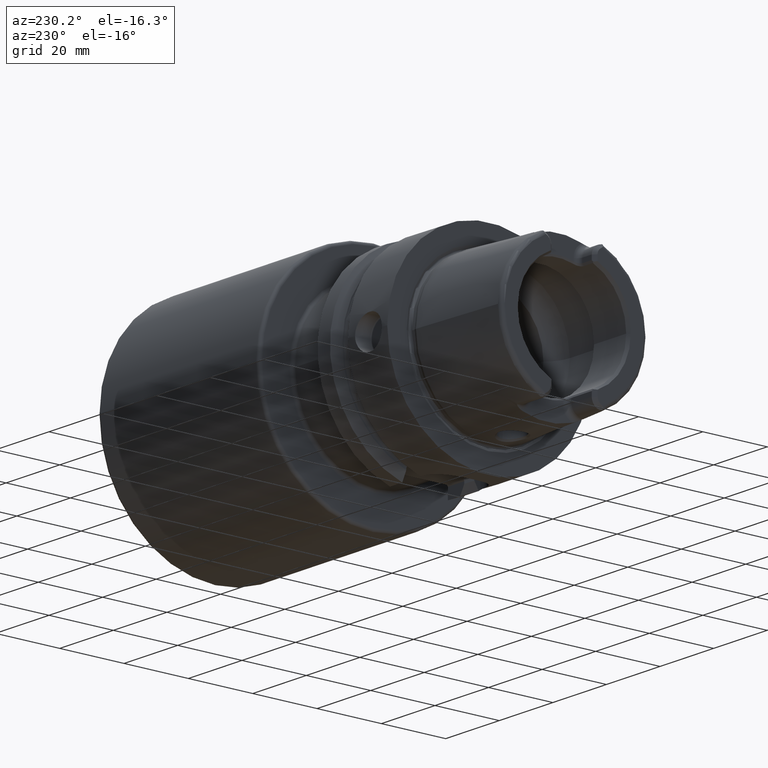
[diagram: clean part render]
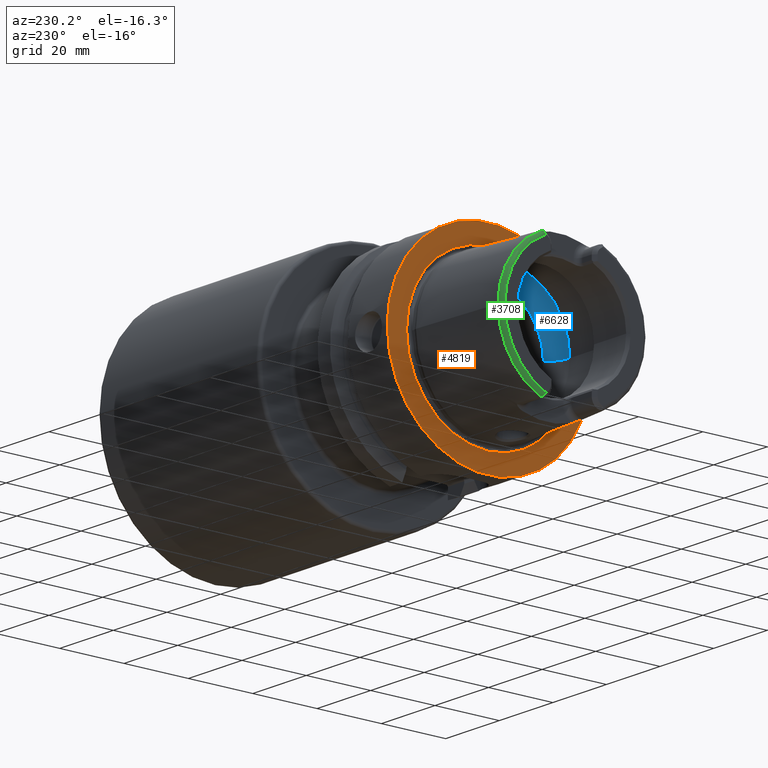
[diagram: same view with three faces highlighted in distinct colors, each labeled with its STEP entity id]
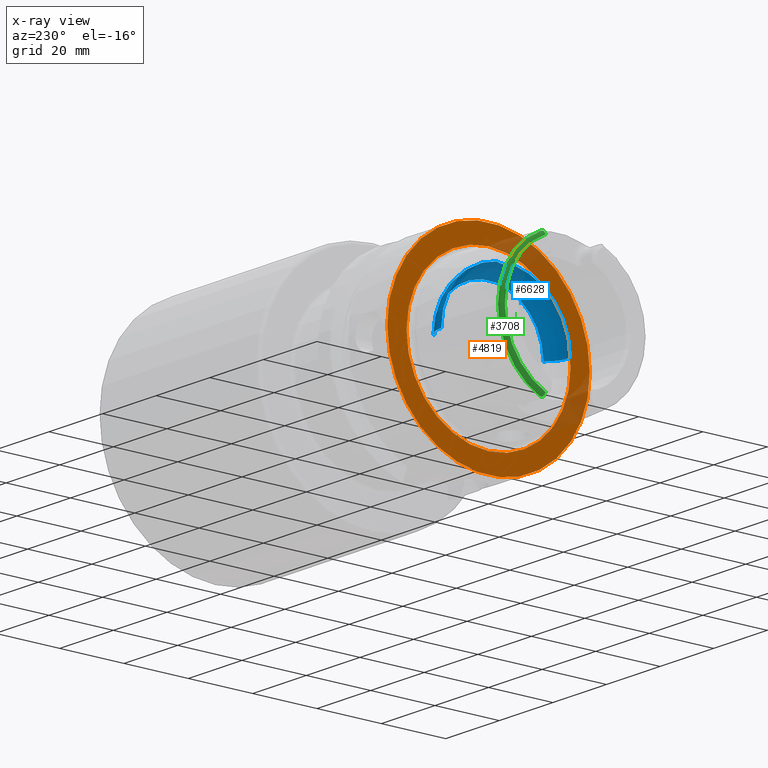
[diagram: x-ray of the same camera — body ghosted, the three highlighted faces saturated]
A machine part, auxiliary view with three faces highlighted in distinct colors.
The next image is the same camera in x-ray (body ghosted, the three faces saturated) — at least one of them is partly hidden behind the body in this view.
Their STEP definitions:

[orange] entity #4819 — the highlighted planar face has unit normal (1, 0, 0).
#1068=CARTESIAN_POINT('',(-1.421085471520E-14,0.E0,0.E0));
#1069=DIRECTION('',(1.E0,0.E0,0.E0));
#1070=DIRECTION('',(0.E0,1.E0,0.E0));
#1071=AXIS2_PLACEMENT_3D('',#1068,#1069,#1070);
#1073=CARTESIAN_POINT('',(-1.421085471520E-14,0.E0,0.E0));
#1074=DIRECTION('',(-1.E0,0.E0,0.E0));
#1075=DIRECTION('',(0.E0,1.E0,0.E0));
#1076=AXIS2_PLACEMENT_3D('',#1073,#1074,#1075);
#1078=CARTESIAN_POINT('',(0.E0,0.E0,0.E0));
#1079=DIRECTION('',(-1.E0,0.E0,0.E0));
#1080=DIRECTION('',(0.E0,-1.E0,0.E0));
#1081=AXIS2_PLACEMENT_3D('',#1078,#1079,#1080);
#1083=CARTESIAN_POINT('',(0.E0,0.E0,0.E0));
#1084=DIRECTION('',(-1.E0,0.E0,0.E0));
#1085=DIRECTION('',(0.E0,1.E0,0.E0));
#1086=AXIS2_PLACEMENT_3D('',#1083,#1084,#1085);
#3050=CARTESIAN_POINT('',(-1.421085471520E-14,3.15E1,0.E0));
#3051=CARTESIAN_POINT('',(-1.421085471520E-14,-3.15E1,0.E0));
#3052=VERTEX_POINT('',#3050);
#3053=VERTEX_POINT('',#3051);
#3078=CARTESIAN_POINT('',(0.E0,-2.549042414966E1,0.E0));
#3079=VERTEX_POINT('',#3078);
#3080=CARTESIAN_POINT('',(0.E0,2.549042414966E1,0.E0));
#3081=VERTEX_POINT('',#3080);
#4804=CARTESIAN_POINT('',(0.E0,0.E0,0.E0));
#4805=DIRECTION('',(1.E0,0.E0,0.E0));
#4806=DIRECTION('',(0.E0,-1.E0,0.E0));
#4807=AXIS2_PLACEMENT_3D('',#4804,#4805,#4806);
#4808=PLANE('',#4807);
#4810=ORIENTED_EDGE('',*,*,#4809,.T.);
#4812=ORIENTED_EDGE('',*,*,#4811,.F.);
#4813=EDGE_LOOP('',(#4810,#4812));
#4814=FACE_OUTER_BOUND('',#4813,.F.);
#4815=ORIENTED_EDGE('',*,*,#4799,.T.);
#4816=ORIENTED_EDGE('',*,*,#4783,.T.);
#4817=EDGE_LOOP('',(#4815,#4816));
#4818=FACE_BOUND('',#4817,.F.);
#4819=ADVANCED_FACE('',(#4814,#4818),#4808,.F.);
#1072=CIRCLE('',#1071,3.15E1);
#1077=CIRCLE('',#1076,3.15E1);
#1082=CIRCLE('',#1081,2.549042414966E1);
#1087=CIRCLE('',#1086,2.549042414966E1);
#4783=EDGE_CURVE('',#3081,#3079,#1087,.T.);
#4799=EDGE_CURVE('',#3079,#3081,#1082,.T.);
#4809=EDGE_CURVE('',#3052,#3053,#1072,.T.);
#4811=EDGE_CURVE('',#3052,#3053,#1077,.T.);

[blue] entity #6628 — the highlighted toroidal blend (fillet) surface has major radius 12 mm and minor (blend) radius 8 mm.
#2668=CARTESIAN_POINT('',(-5.25E0,0.E0,1.992470689575E1));
#2669=CARTESIAN_POINT('',(-5.25E0,1.634249880127E-1,1.992470689575E1));
#2670=CARTESIAN_POINT('',(-5.271317000323E0,4.905125142286E-1,
1.992366860007E1));
#2671=CARTESIAN_POINT('',(-5.367938073203E0,9.753406287590E-1,
1.991846757388E1));
#2672=CARTESIAN_POINT('',(-5.525913254439E0,1.440181253243E0,1.990841194030E1));
#2673=CARTESIAN_POINT('',(-5.745012466850E0,1.883704211740E0,1.989126222791E1));
#2674=CARTESIAN_POINT('',(-6.017092970824E0,2.289932260455E0,1.986481338490E1));
#2675=CARTESIAN_POINT('',(-6.231037578916E0,2.534045566496E0,1.983915065875E1));
#2676=CARTESIAN_POINT('',(-6.344997998398E0,2.648294615690E0,1.982388800484E1));
#2678=CARTESIAN_POINT('',(-6.344997998398E0,-2.648294615690E0,
1.982388800484E1));
#2679=CARTESIAN_POINT('',(-6.231045843136E0,-2.534053851646E0,
1.983914955193E1));
#2680=CARTESIAN_POINT('',(-6.017093742818E0,-2.289943440357E0,
1.986481395775E1));
#2681=CARTESIAN_POINT('',(-5.744901596897E0,-1.883527876206E0,
1.989127237006E1));
#2682=CARTESIAN_POINT('',(-5.525828432433E0,-1.439963272778E0,
1.990841763195E1));
#2683=CARTESIAN_POINT('',(-5.367908372542E0,-9.752317929729E-1,
1.991846926373E1));
#2684=CARTESIAN_POINT('',(-5.271289109403E0,-4.903031116233E-1,
1.992367002777E1));
#2685=CARTESIAN_POINT('',(-5.25E0,-1.633414179458E-1,1.992470689575E1));
#2686=CARTESIAN_POINT('',(-5.25E0,0.E0,1.992470689575E1));
#2688=CARTESIAN_POINT('',(-1.E-1,0.E0,0.E0));
#2689=DIRECTION('',(1.E0,0.E0,0.E0));
#2690=DIRECTION('',(0.E0,1.E0,0.E0));
#2691=AXIS2_PLACEMENT_3D('',#2688,#2689,#2690);
#2713=CARTESIAN_POINT('',(-6.344997998398E0,0.E0,0.E0));
#2714=DIRECTION('',(1.E0,0.E0,0.E0));
#2715=DIRECTION('',(0.E0,1.E0,0.E0));
#2716=AXIS2_PLACEMENT_3D('',#2713,#2714,#2715);
#2718=CARTESIAN_POINT('',(-6.344997998398E0,0.E0,0.E0));
#2719=DIRECTION('',(1.E0,0.E0,0.E0));
#2720=DIRECTION('',(0.E0,-1.324147307845E-1,9.911944002421E-1));
#2721=AXIS2_PLACEMENT_3D('',#2718,#2719,#2720);
#2811=CARTESIAN_POINT('',(-6.344997998398E0,1.2E1,0.E0));
#2812=DIRECTION('',(0.E0,0.E0,1.E0));
#2813=DIRECTION('',(7.806247497998E-1,6.25E-1,0.E0));
#2814=AXIS2_PLACEMENT_3D('',#2811,#2812,#2813);
#2821=CARTESIAN_POINT('',(-6.344997998398E0,-1.2E1,0.E0));
#2822=DIRECTION('',(0.E0,0.E0,-1.E0));
#2823=DIRECTION('',(7.806247497998E-1,-6.25E-1,0.E0));
#2824=AXIS2_PLACEMENT_3D('',#2821,#2822,#2823);
#3090=CARTESIAN_POINT('',(-1.E-1,1.7E1,0.E0));
#3091=VERTEX_POINT('',#3090);
#3092=CARTESIAN_POINT('',(-6.344997998398E0,2.E1,0.E0));
#3093=VERTEX_POINT('',#3092);
#3102=CARTESIAN_POINT('',(-1.E-1,-1.7E1,0.E0));
#3103=VERTEX_POINT('',#3102);
#3104=CARTESIAN_POINT('',(-6.344997998398E0,-2.E1,0.E0));
#3105=VERTEX_POINT('',#3104);
#3273=VERTEX_POINT('',#2668);
#3274=VERTEX_POINT('',#2676);
#3275=VERTEX_POINT('',#2678);
#6609=CARTESIAN_POINT('',(-6.344997998398E0,0.E0,0.E0));
#6610=DIRECTION('',(1.E0,0.E0,0.E0));
#6611=DIRECTION('',(0.E0,-1.E0,0.E0));
#6612=AXIS2_PLACEMENT_3D('',#6609,#6610,#6611);
#6613=TOROIDAL_SURFACE('',#6612,1.2E1,8.E0);
#6614=ORIENTED_EDGE('',*,*,#6586,.F.);
#6615=ORIENTED_EDGE('',*,*,#6352,.F.);
#6617=ORIENTED_EDGE('',*,*,#6616,.T.);
#6619=ORIENTED_EDGE('',*,*,#6618,.F.);
#6621=ORIENTED_EDGE('',*,*,#6620,.F.);
#6623=ORIENTED_EDGE('',*,*,#6622,.T.);
#6625=ORIENTED_EDGE('',*,*,#6624,.T.);
#6626=EDGE_LOOP('',(#6614,#6615,#6617,#6619,#6621,#6623,#6625));
#6627=FACE_OUTER_BOUND('',#6626,.F.);
#6628=ADVANCED_FACE('',(#6627),#6613,.F.);
#2677=B_SPLINE_CURVE_WITH_KNOTS('',3,(#2668,#2669,#2670,#2671,#2672,#2673,#2674,
#2675,#2676),.UNSPECIFIED.,.F.,.F.,(4,1,1,1,1,1,4),(0.E0,1.666666666667E-1,
3.333333333333E-1,5.E-1,6.666666666667E-1,8.333333333333E-1,1.E0),
.UNSPECIFIED.);
#2687=B_SPLINE_CURVE_WITH_KNOTS('',3,(#2678,#2679,#2680,#2681,#2682,#2683,#2684,
#2685,#2686),.UNSPECIFIED.,.F.,.F.,(4,1,1,1,1,1,4),(0.E0,1.666666666667E-1,
3.333333333333E-1,5.E-1,6.666666666667E-1,8.333333333333E-1,1.E0),
.UNSPECIFIED.);
#2692=CIRCLE('',#2691,1.7E1);
#2717=CIRCLE('',#2716,2.E1);
#2722=CIRCLE('',#2721,2.E1);
#2815=CIRCLE('',#2814,8.E0);
#2825=CIRCLE('',#2824,8.E0);
#6352=EDGE_CURVE('',#3275,#3273,#2687,.T.);
#6586=EDGE_CURVE('',#3273,#3274,#2677,.T.);
#6616=EDGE_CURVE('',#3275,#3105,#2722,.T.);
#6618=EDGE_CURVE('',#3103,#3105,#2825,.T.);
#6620=EDGE_CURVE('',#3091,#3103,#2692,.T.);
#6622=EDGE_CURVE('',#3091,#3093,#2815,.T.);
#6624=EDGE_CURVE('',#3093,#3274,#2717,.T.);

[green] entity #3708 — the highlighted toroidal blend (fillet) surface has major radius 21.5761 mm and minor (blend) radius 1.2 mm.
#155=CARTESIAN_POINT('',(-3.142329832300E1,9.147789680232E0,-2.066750973939E1));
#156=CARTESIAN_POINT('',(-3.146785463680E1,9.169327161481E0,-2.062835928028E1));
#157=CARTESIAN_POINT('',(-3.155487993536E1,9.203474960428E0,-2.054672249220E1));
#158=CARTESIAN_POINT('',(-3.168154941819E1,9.224273580731E0,-2.040902349895E1));
#159=CARTESIAN_POINT('',(-3.179638971845E1,9.206079697358E0,-2.025999286960E1));
#160=CARTESIAN_POINT('',(-3.189041365611E1,9.144200972137E0,-2.010730009138E1));
#161=CARTESIAN_POINT('',(-3.195659880516E1,9.041253650427E0,-1.996104010677E1));
#162=CARTESIAN_POINT('',(-3.199307626724E1,8.906850532423E0,-1.982972129493E1));
#163=CARTESIAN_POINT('',(-3.2E1,8.806197293584E0,-1.975573388857E1));
#164=CARTESIAN_POINT('',(-3.2E1,8.752868121732E0,-1.972091419616E1));
#166=CARTESIAN_POINT('',(-3.132832518959E1,9.27E0,-2.067E1));
#167=CARTESIAN_POINT('',(-3.134450759901E1,9.250608646179E0,-2.067E1));
#168=CARTESIAN_POINT('',(-3.137648814066E1,9.210816796832E0,-2.066962390252E1));
#169=CARTESIAN_POINT('',(-3.140779600340E1,9.169107457374E0,-2.066837887831E1));
#170=CARTESIAN_POINT('',(-3.142329832300E1,9.147789680232E0,-2.066750973939E1));
#172=CARTESIAN_POINT('',(-3.086004306431E1,9.562027931336E0,-2.067E1));
#173=CARTESIAN_POINT('',(-3.089908117982E1,9.557369764332E0,-2.067E1));
#174=CARTESIAN_POINT('',(-3.097780815735E1,9.539070199208E0,-2.067E1));
#175=CARTESIAN_POINT('',(-3.110050491135E1,9.479694699778E0,-2.067E1));
#176=CARTESIAN_POINT('',(-3.121836320761E1,9.390392333018E0,-2.067E1));
#177=CARTESIAN_POINT('',(-3.129230837722E1,9.313158885277E0,-2.067E1));
#178=CARTESIAN_POINT('',(-3.132832518959E1,9.27E0,-2.067E1));
#180=CARTESIAN_POINT('',(-3.086004306431E1,0.E0,0.E0));
#181=DIRECTION('',(-1.E0,0.E0,0.E0));
#182=DIRECTION('',(0.E0,1.E0,0.E0));
#183=AXIS2_PLACEMENT_3D('',#180,#181,#182);
#185=CARTESIAN_POINT('',(-3.086004306431E1,0.E0,0.E0));
#186=DIRECTION('',(1.E0,0.E0,0.E0));
#187=DIRECTION('',(0.E0,1.E0,0.E0));
#188=AXIS2_PLACEMENT_3D('',#185,#186,#187);
#190=CARTESIAN_POINT('',(-3.132832518959E1,9.27E0,2.067E1));
#191=CARTESIAN_POINT('',(-3.129225458868E1,9.313223339992E0,2.067E1));
#192=CARTESIAN_POINT('',(-3.121820569130E1,9.390519030682E0,2.067E1));
#193=CARTESIAN_POINT('',(-3.110062643974E1,9.479612323317E0,2.067E1));
#194=CARTESIAN_POINT('',(-3.097775607391E1,9.539101836846E0,2.067E1));
#195=CARTESIAN_POINT('',(-3.089906305674E1,9.557371926843E0,2.067E1));
#196=CARTESIAN_POINT('',(-3.086004306431E1,9.562027931336E0,2.067E1));
#198=CARTESIAN_POINT('',(-3.142329832300E1,9.147789680232E0,2.066750973939E1));
#199=CARTESIAN_POINT('',(-3.140773724452E1,9.169188258734E0,2.066838217263E1));
#200=CARTESIAN_POINT('',(-3.137636553203E1,9.210974971125E0,2.066962696388E1));
#201=CARTESIAN_POINT('',(-3.134444355624E1,9.250685388521E0,2.067E1));
#202=CARTESIAN_POINT('',(-3.132832518959E1,9.27E0,2.067E1));
#204=CARTESIAN_POINT('',(-3.2E1,8.752868121732E0,1.972091419616E1));
#205=CARTESIAN_POINT('',(-3.2E1,8.806191392107E0,1.975573003538E1));
#206=CARTESIAN_POINT('',(-3.199307728065E1,8.906838058357E0,1.982971194007E1));
#207=CARTESIAN_POINT('',(-3.195660462370E1,9.041248816786E0,1.996103000182E1));
#208=CARTESIAN_POINT('',(-3.189040233195E1,9.144202826203E0,2.010731482616E1));
#209=CARTESIAN_POINT('',(-3.179646342749E1,9.206041881340E0,2.025988014952E1));
#210=CARTESIAN_POINT('',(-3.168160529070E1,9.224292971301E0,2.040896943202E1));
#211=CARTESIAN_POINT('',(-3.155472601909E1,9.203436757989E0,2.054688136818E1));
#212=CARTESIAN_POINT('',(-3.146778482605E1,9.169293416595E0,2.062842062115E1));
#213=CARTESIAN_POINT('',(-3.142329832300E1,9.147789680232E0,2.066750973939E1));
#215=CARTESIAN_POINT('',(-3.2E1,0.E0,0.E0));
#216=DIRECTION('',(-1.E0,0.E0,0.E0));
#217=DIRECTION('',(0.E0,4.056746540583E-1,9.140175463604E-1));
#218=AXIS2_PLACEMENT_3D('',#215,#216,#217);
#3074=CARTESIAN_POINT('',(-3.086004306431E1,2.277457525750E1,0.E0));
#3075=VERTEX_POINT('',#3074);
#3114=VERTEX_POINT('',#190);
#3115=VERTEX_POINT('',#196);
#3147=CARTESIAN_POINT('',(-3.2E1,8.752868121732E0,1.972091419616E1));
#3148=VERTEX_POINT('',#3147);
#3149=VERTEX_POINT('',#213);
#3195=VERTEX_POINT('',#172);
#3196=VERTEX_POINT('',#178);
#3243=CARTESIAN_POINT('',(-3.2E1,8.752868121732E0,-1.972091419616E1));
#3244=VERTEX_POINT('',#3243);
#3245=VERTEX_POINT('',#155);
#3684=CARTESIAN_POINT('',(-3.08E1,0.E0,0.E0));
#3685=DIRECTION('',(1.E0,0.E0,0.E0));
#3686=DIRECTION('',(0.E0,-1.E0,0.E0));
#3687=AXIS2_PLACEMENT_3D('',#3684,#3685,#3686);
#3688=TOROIDAL_SURFACE('',#3687,2.157607835286E1,1.2E0);
#3690=ORIENTED_EDGE('',*,*,#3689,.F.);
#3692=ORIENTED_EDGE('',*,*,#3691,.F.);
#3694=ORIENTED_EDGE('',*,*,#3693,.F.);
#3696=ORIENTED_EDGE('',*,*,#3695,.F.);
#3697=ORIENTED_EDGE('',*,*,#3575,.T.);
#3699=ORIENTED_EDGE('',*,*,#3698,.F.);
#3701=ORIENTED_EDGE('',*,*,#3700,.F.);
#3703=ORIENTED_EDGE('',*,*,#3702,.F.);
#3705=ORIENTED_EDGE('',*,*,#3704,.T.);
#3706=EDGE_LOOP('',(#3690,#3692,#3694,#3696,#3697,#3699,#3701,#3703,#3705));
#3707=FACE_OUTER_BOUND('',#3706,.F.);
#3708=ADVANCED_FACE('',(#3707),#3688,.T.);
#165=B_SPLINE_CURVE_WITH_KNOTS('',3,(#155,#156,#157,#158,#159,#160,#161,#162,
#163,#164),.UNSPECIFIED.,.F.,.F.,(4,1,1,1,1,1,1,4),(0.E0,1.428571428571E-1,
2.857142857143E-1,4.285714285714E-1,5.714285714286E-1,7.142857142857E-1,
8.571428571429E-1,1.E0),.UNSPECIFIED.);
#171=B_SPLINE_CURVE_WITH_KNOTS('',3,(#166,#167,#168,#169,#170),.UNSPECIFIED.,
.F.,.F.,(4,1,4),(0.E0,5.E-1,1.E0),.UNSPECIFIED.);
#179=B_SPLINE_CURVE_WITH_KNOTS('',3,(#172,#173,#174,#175,#176,#177,#178),
.UNSPECIFIED.,.F.,.F.,(4,1,1,1,4),(0.E0,2.5E-1,5.E-1,7.5E-1,1.E0),
.UNSPECIFIED.);
#184=CIRCLE('',#183,2.277457525750E1);
#189=CIRCLE('',#188,2.277457525750E1);
#197=B_SPLINE_CURVE_WITH_KNOTS('',3,(#190,#191,#192,#193,#194,#195,#196),
.UNSPECIFIED.,.F.,.F.,(4,1,1,1,4),(0.E0,2.5E-1,5.E-1,7.5E-1,1.E0),
.UNSPECIFIED.);
#203=B_SPLINE_CURVE_WITH_KNOTS('',3,(#198,#199,#200,#201,#202),.UNSPECIFIED.,
.F.,.F.,(4,1,4),(0.E0,5.E-1,1.E0),.UNSPECIFIED.);
#214=B_SPLINE_CURVE_WITH_KNOTS('',3,(#204,#205,#206,#207,#208,#209,#210,#211,
#212,#213),.UNSPECIFIED.,.F.,.F.,(4,1,1,1,1,1,1,4),(0.E0,1.428571428571E-1,
2.857142857143E-1,4.285714285714E-1,5.714285714286E-1,7.142857142857E-1,
8.571428571429E-1,1.E0),.UNSPECIFIED.);
#219=CIRCLE('',#218,2.157607835286E1);
#3575=EDGE_CURVE('',#3075,#3115,#189,.T.);
#3689=EDGE_CURVE('',#3245,#3244,#165,.T.);
#3691=EDGE_CURVE('',#3196,#3245,#171,.T.);
#3693=EDGE_CURVE('',#3195,#3196,#179,.T.);
#3695=EDGE_CURVE('',#3075,#3195,#184,.T.);
#3698=EDGE_CURVE('',#3114,#3115,#197,.T.);
#3700=EDGE_CURVE('',#3149,#3114,#203,.T.);
#3702=EDGE_CURVE('',#3148,#3149,#214,.T.);
#3704=EDGE_CURVE('',#3148,#3244,#219,.T.);